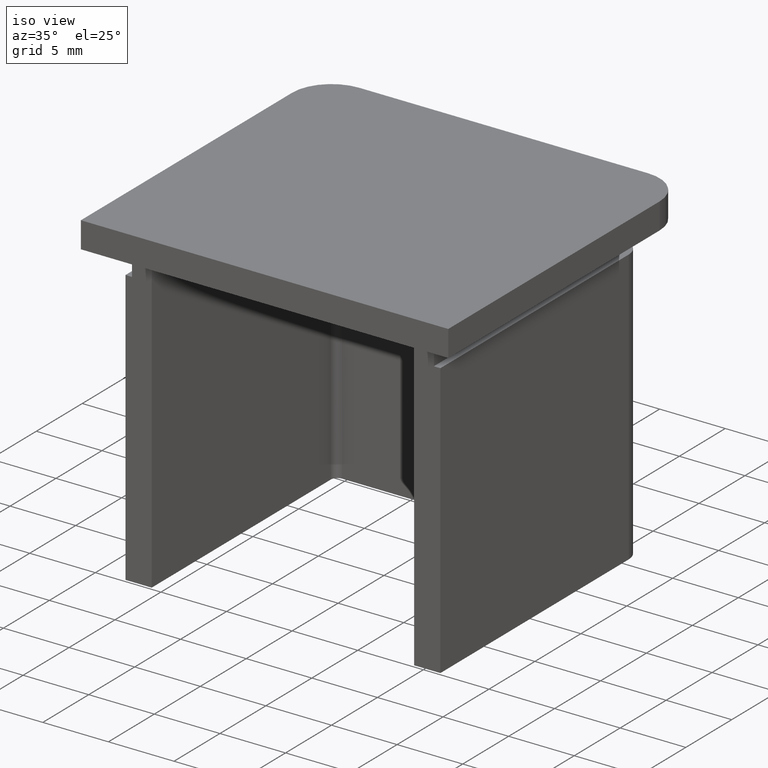
[diagram: clean part render]
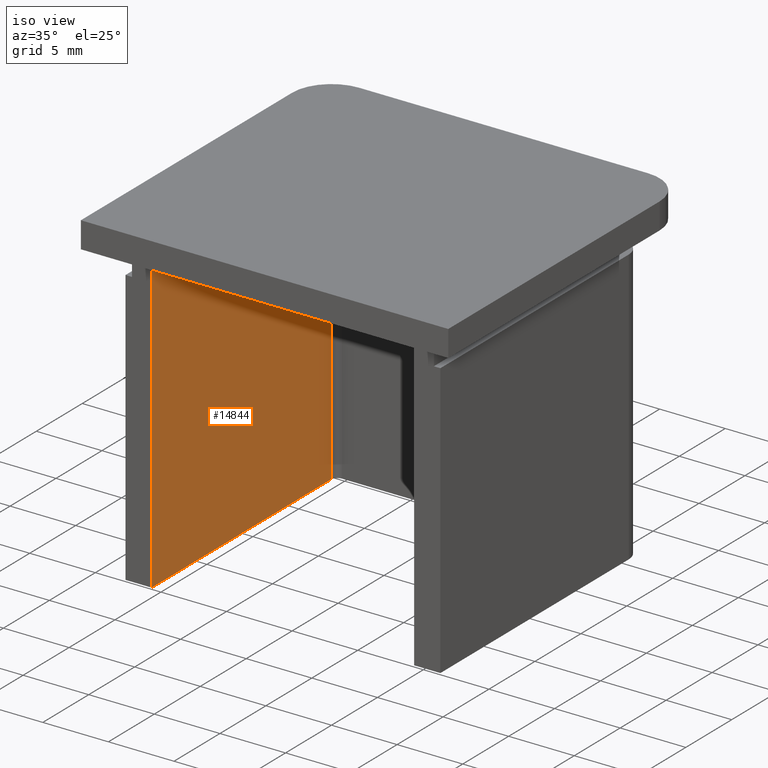
[diagram: same view with one face highlighted and labeled with its STEP entity id]
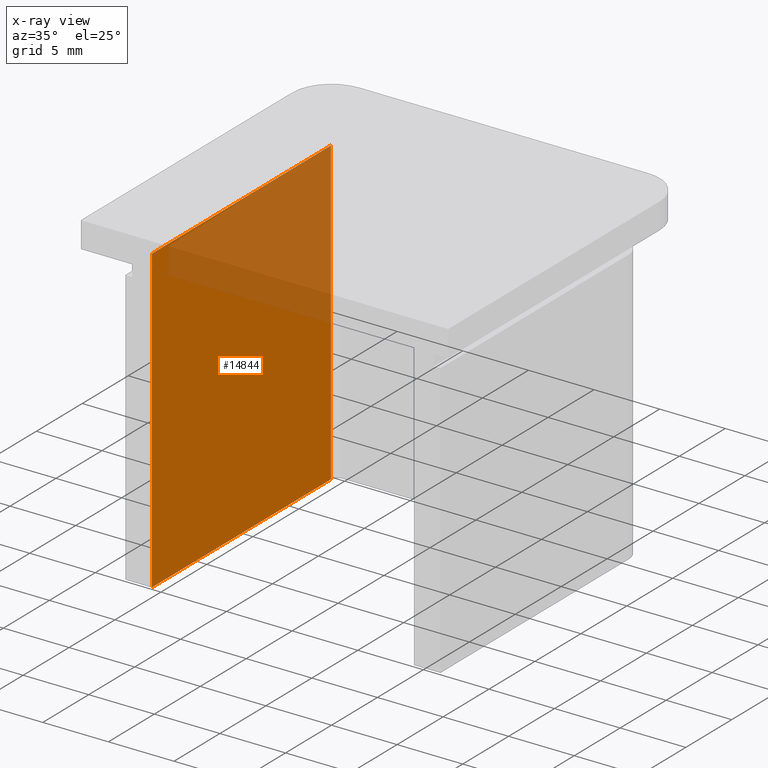
[diagram: x-ray of the same camera — body ghosted, the highlighted face saturated]
A machine part, iso view. The second image highlights one B-rep face of the part: STEP entity #14844.
The next image is the same camera in x-ray: the body ghosted, the highlighted face saturated — about 28% of this face is hidden behind the body in this view.
In plain terms, the highlighted planar face has unit normal (-1, -0, 0).
Its self-contained STEP definition (entity closure, byte-faithful):
#48 = CARTESIAN_POINT ( 'NONE',  ( -10.00000000000000355, -11.00000000000000000, -23.00000000000000000 ) ) ;
#337 = CARTESIAN_POINT ( 'NONE',  ( -10.00000000000000355, -11.00000000000000000, -23.00000000000000000 ) ) ;
#763 = VECTOR ( 'NONE', #11713, 1000.000000000000000 ) ;
#791 = CARTESIAN_POINT ( 'NONE',  ( -10.00000000000000533, 8.499999999999994671, -23.00000000000000000 ) ) ;
#810 = DIRECTION ( 'NONE',  ( -1.000000000000000000, -8.896017825522089339E-17, 0.000000000000000000 ) ) ;
#2350 = FACE_OUTER_BOUND ( 'NONE', #12353, .T. ) ;
#2390 = CARTESIAN_POINT ( 'NONE',  ( -10.00000000000000355, -11.00000000000000000, 0.000000000000000000 ) ) ;
#2573 = VECTOR ( 'NONE', #15728, 1000.000000000000000 ) ;
#2809 = CARTESIAN_POINT ( 'NONE',  ( -10.00000000000000355, -11.00000000000000000, 0.000000000000000000 ) ) ;
#2955 = VERTEX_POINT ( 'NONE', #48 ) ;
#3458 = VERTEX_POINT ( 'NONE', #16715 ) ;
#3472 = CARTESIAN_POINT ( 'NONE',  ( -10.00000000000000355, -11.00000000000000000, -23.00000000000000000 ) ) ;
#4997 = LINE ( 'NONE', #2390, #5434 ) ;
#5434 = VECTOR ( 'NONE', #10423, 1000.000000000000000 ) ;
#5866 = EDGE_CURVE ( 'NONE', #3458, #2955, #15757, .T. ) ;
#6019 = LINE ( 'NONE', #791, #16720 ) ;
#8510 = ORIENTED_EDGE ( 'NONE', *, *, #13542, .T. ) ;
#8514 = EDGE_CURVE ( 'NONE', #13782, #12766, #4997, .T. ) ;
#10423 = DIRECTION ( 'NONE',  ( 8.896017825522089339E-17, -1.000000000000000000, -0.000000000000000000 ) ) ;
#11713 = DIRECTION ( 'NONE',  ( 8.896017825522089339E-17, -1.000000000000000000, -0.000000000000000000 ) ) ;
#12210 = LINE ( 'NONE', #17061, #2573 ) ;
#12353 = EDGE_LOOP ( 'NONE', ( #13050, #15546, #15787, #8510 ) ) ;
#12766 = VERTEX_POINT ( 'NONE', #2809 ) ;
#13050 = ORIENTED_EDGE ( 'NONE', *, *, #8514, .T. ) ;
#13542 = EDGE_CURVE ( 'NONE', #3458, #13782, #6019, .T. ) ;
#13782 = VERTEX_POINT ( 'NONE', #14864 ) ;
#14844 = ADVANCED_FACE ( 'NONE', ( #2350 ), #15718, .F. ) ;
#14864 = CARTESIAN_POINT ( 'NONE',  ( -10.00000000000000533, 8.499999999999994671, 0.000000000000000000 ) ) ;
#15141 = AXIS2_PLACEMENT_3D ( 'NONE', #3472, #810, #15838 ) ;
#15546 = ORIENTED_EDGE ( 'NONE', *, *, #17023, .F. ) ;
#15718 = PLANE ( 'NONE',  #15141 ) ;
#15728 = DIRECTION ( 'NONE',  ( -0.000000000000000000, -0.000000000000000000, 1.000000000000000000 ) ) ;
#15757 = LINE ( 'NONE', #337, #763 ) ;
#15787 = ORIENTED_EDGE ( 'NONE', *, *, #5866, .F. ) ;
#15838 = DIRECTION ( 'NONE',  ( 8.896017825522089339E-17, -1.000000000000000000, 0.000000000000000000 ) ) ;
#15923 = DIRECTION ( 'NONE',  ( -0.000000000000000000, -0.000000000000000000, 1.000000000000000000 ) ) ;
#16715 = CARTESIAN_POINT ( 'NONE',  ( -10.00000000000000533, 8.499999999999994671, -23.00000000000000000 ) ) ;
#16720 = VECTOR ( 'NONE', #15923, 1000.000000000000000 ) ;
#17023 = EDGE_CURVE ( 'NONE', #2955, #12766, #12210, .T. ) ;
#17061 = CARTESIAN_POINT ( 'NONE',  ( -10.00000000000000355, -11.00000000000000000, -23.00000000000000000 ) ) ;